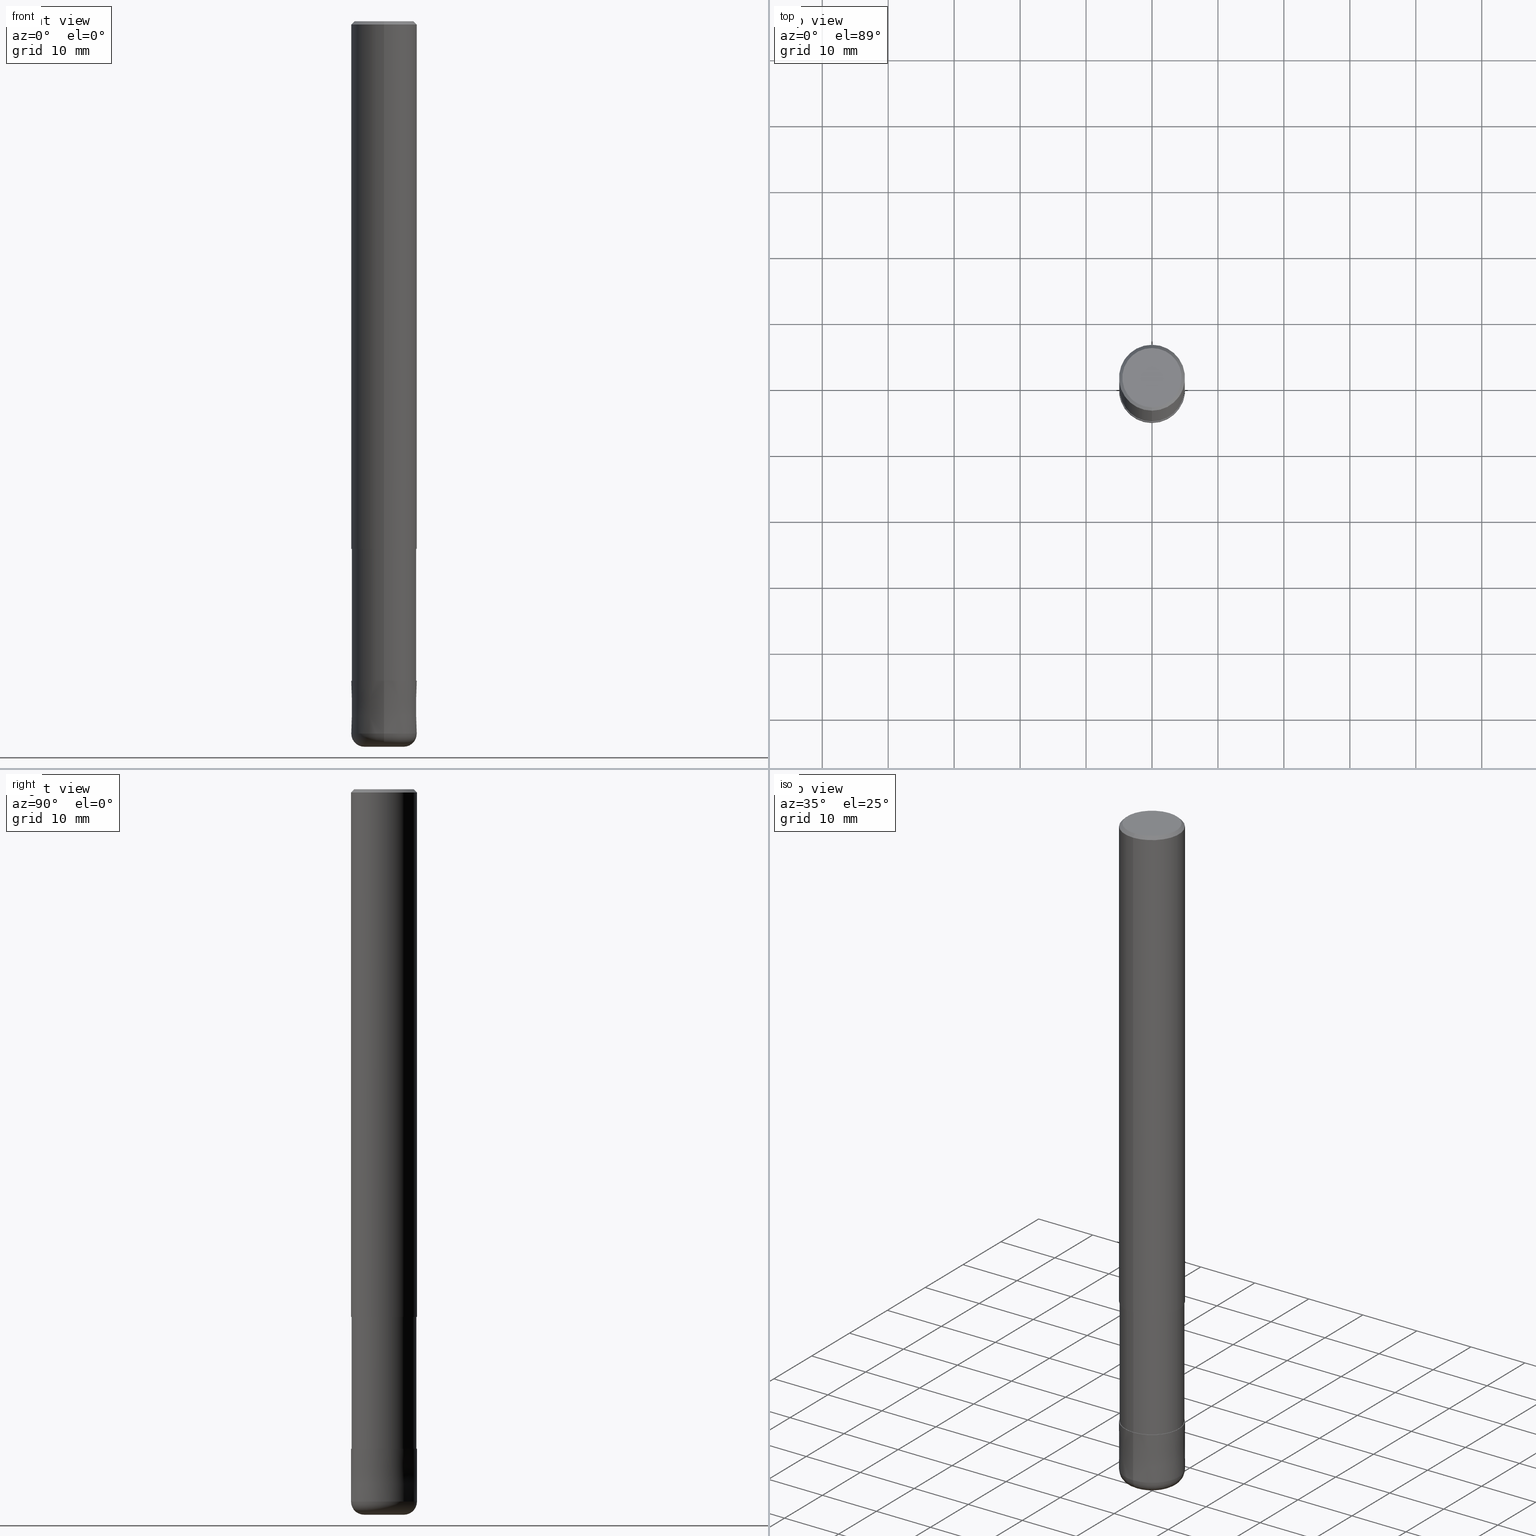
[diagram: canonical four-view strip — front | top / right | iso, engineering-drawing reading convention]
A machine part, canonical four-view strip (front | top / right | iso — engineering-drawing reading convention). The complete STEP part file that produces these views, byte-faithful:
ISO-10303-21;
HEADER;
FILE_DESCRIPTION(('no description'),'unknown implementation level');
FILE_NAME('CRRS4100-20-30-Huellk.stp','  ',('CIMSOURCE GmbH'),('CADClick - KiM GmbH - www.kimweb.de'),'unknown preprocess','ACIS','unknown authorization');
FILE_SCHEMA(('automotive_design'));
ENDSEC;
DATA;
#1=MECHANICAL_DESIGN_GEOMETRIC_PRESENTATION_REPRESENTATION(' ',(#14,#15,#16,#17,#18,#19,#20,#21,#22,#23,#24,#25,#26,#27,#28,#29,#30,#31,#32,#33,#34,#35,#36,#37,#38,#39,#40,#41,#42,#43,#44,#45,#46,#47,#48,#49,#50,#51,#52,#53,#54,#55,#56,#57,#58,#59,#60,#61,#62,#63,#64,#65,#66,#67,#68,#69,#70,#71,#72),#10);
#2=PRODUCT_DEFINITION_CONTEXT('',#73,'design');
#3=APPLICATION_PROTOCOL_DEFINITION('INTERNATIONAL STANDARD','automotive_design',1994,#73);
#4=PRODUCT_CATEGORY_RELATIONSHIP('NONE','NONE',#74,#75);
#5=SHAPE_DEFINITION_REPRESENTATION(#76,#77);
#6=PRODUCT_DEFINITION_CONTEXT('',#78,'design');
#7=APPLICATION_PROTOCOL_DEFINITION('INTERNATIONAL STANDARD','automotive_design',1994,#78);
#8=PRODUCT_CATEGORY_RELATIONSHIP('NONE','NONE',#79,#80);
#9=SHAPE_DEFINITION_REPRESENTATION(#81,#82);
#10= (GEOMETRIC_REPRESENTATION_CONTEXT(3)GLOBAL_UNCERTAINTY_ASSIGNED_CONTEXT((#85))GLOBAL_UNIT_ASSIGNED_CONTEXT((#87,#88,#89))REPRESENTATION_CONTEXT('NONE','WORKSPACE'));
#14=STYLED_ITEM('',(#91),#92);
#15=STYLED_ITEM('',(#93),#94);
#16=STYLED_ITEM('',(#95),#96);
#17=STYLED_ITEM('',(#97),#98);
#18=STYLED_ITEM('',(#99),#100);
#19=STYLED_ITEM('',(#101),#102);
#20=STYLED_ITEM('',(#103),#104);
#21=STYLED_ITEM('',(#105),#106);
#22=STYLED_ITEM('',(#107),#108);
#23=STYLED_ITEM('',(#109),#110);
#24=STYLED_ITEM('',(#111),#112);
#25=STYLED_ITEM('',(#113),#114);
#26=STYLED_ITEM('',(#115),#116);
#27=STYLED_ITEM('',(#117),#118);
#28=STYLED_ITEM('',(#119),#120);
#29=STYLED_ITEM('',(#121),#122);
#30=STYLED_ITEM('',(#123),#124);
#31=STYLED_ITEM('',(#125),#126);
#32=STYLED_ITEM('',(#127),#128);
#33=STYLED_ITEM('',(#129),#130);
#34=STYLED_ITEM('',(#131),#132);
#35=STYLED_ITEM('',(#133),#134);
#36=STYLED_ITEM('',(#135),#136);
#37=STYLED_ITEM('',(#137),#138);
#38=STYLED_ITEM('',(#139),#140);
#39=STYLED_ITEM('',(#141),#142);
#40=STYLED_ITEM('',(#143),#144);
#41=STYLED_ITEM('',(#145),#146);
#42=STYLED_ITEM('',(#147),#148);
#43=STYLED_ITEM('',(#149),#150);
#44=STYLED_ITEM('',(#151),#152);
#45=STYLED_ITEM('',(#153),#154);
#46=STYLED_ITEM('',(#155),#156);
#47=STYLED_ITEM('',(#157),#158);
#48=STYLED_ITEM('',(#159),#160);
#49=STYLED_ITEM('',(#161),#162);
#50=STYLED_ITEM('',(#163),#164);
#51=STYLED_ITEM('',(#165),#166);
#52=STYLED_ITEM('',(#167),#168);
#53=STYLED_ITEM('',(#169),#170);
#54=STYLED_ITEM('',(#171),#172);
#55=STYLED_ITEM('',(#173),#174);
#56=STYLED_ITEM('',(#175),#176);
#57=STYLED_ITEM('',(#177),#178);
#58=STYLED_ITEM('',(#179),#180);
#59=STYLED_ITEM('',(#181),#182);
#60=STYLED_ITEM('',(#183),#184);
#61=STYLED_ITEM('',(#185),#186);
#62=STYLED_ITEM('',(#187),#188);
#63=STYLED_ITEM('',(#189),#190);
#64=STYLED_ITEM('',(#191),#192);
#65=STYLED_ITEM('',(#193),#194);
#66=STYLED_ITEM('',(#195),#196);
#67=STYLED_ITEM('',(#197),#198);
#68=STYLED_ITEM('',(#199),#200);
#69=STYLED_ITEM('',(#201),#202);
#70=STYLED_ITEM('',(#203),#204);
#71=STYLED_ITEM('',(#205),#206);
#72=STYLED_ITEM('',(#207),#208);
#73=APPLICATION_CONTEXT(' ');
#74=PRODUCT_CATEGORY('part','NONE');
#75=PRODUCT_RELATED_PRODUCT_CATEGORY('detail',' ',(#209));
#76=PRODUCT_DEFINITION_SHAPE('NONE','NONE',#210);
#77=ADVANCED_BREP_SHAPE_REPRESENTATION('1',(#136,#211),#10);
#78=APPLICATION_CONTEXT(' ');
#79=PRODUCT_CATEGORY('part','NONE');
#80=PRODUCT_RELATED_PRODUCT_CATEGORY('detail',' ',(#212));
#81=PRODUCT_DEFINITION_SHAPE('NONE','NONE',#213);
#82=ADVANCED_BREP_SHAPE_REPRESENTATION('2',(#146,#214),#10);
#85=UNCERTAINTY_MEASURE_WITH_UNIT(LENGTH_MEASURE(1.0E-006),#87,'','');
#87= (CONVERSION_BASED_UNIT('MILLIMETRE',#217)LENGTH_UNIT()NAMED_UNIT(#220));
#88= (NAMED_UNIT(#222)PLANE_ANGLE_UNIT()SI_UNIT($,.RADIAN.));
#89= (NAMED_UNIT(#222)SOLID_ANGLE_UNIT()SI_UNIT($,.STERADIAN.));
#91=PRESENTATION_STYLE_ASSIGNMENT((#228));
#92=VERTEX_POINT('',#229);
#93=PRESENTATION_STYLE_ASSIGNMENT((#230));
#94=EDGE_CURVE('',#186,#122,#231,.T.);
#95=PRESENTATION_STYLE_ASSIGNMENT((#232));
#96=EDGE_CURVE('',#138,#182,#233,.T.);
#97=PRESENTATION_STYLE_ASSIGNMENT((#234));
#98=ADVANCED_FACE('',(#235),#236,.T.);
#99=PRESENTATION_STYLE_ASSIGNMENT((#237));
#100=VERTEX_POINT('',#238);
#101=PRESENTATION_STYLE_ASSIGNMENT((#239));
#102=VERTEX_POINT('',#240);
#103=PRESENTATION_STYLE_ASSIGNMENT((#241));
#104=VERTEX_POINT('',#242);
#105=PRESENTATION_STYLE_ASSIGNMENT((#243));
#106=EDGE_CURVE('',#196,#112,#244,.T.);
#107=PRESENTATION_STYLE_ASSIGNMENT((#245));
#108=ADVANCED_FACE('',(#246),#247,.T.);
#109=PRESENTATION_STYLE_ASSIGNMENT((#248));
#110=ADVANCED_FACE('',(#249),#250,.T.);
#111=PRESENTATION_STYLE_ASSIGNMENT((#251));
#112=VERTEX_POINT('',#252);
#113=PRESENTATION_STYLE_ASSIGNMENT((#253));
#114=EDGE_CURVE('',#164,#138,#254,.T.);
#115=PRESENTATION_STYLE_ASSIGNMENT((#255));
#116=EDGE_CURVE('',#154,#102,#256,.T.);
#117=PRESENTATION_STYLE_ASSIGNMENT((#257));
#118=ADVANCED_FACE('',(#258),#259,.T.);
#119=PRESENTATION_STYLE_ASSIGNMENT((#260));
#120=VERTEX_POINT('',#261);
#121=PRESENTATION_STYLE_ASSIGNMENT((#262));
#122=VERTEX_POINT('',#263);
#123=PRESENTATION_STYLE_ASSIGNMENT((#264));
#124=VERTEX_POINT('',#265);
#125=PRESENTATION_STYLE_ASSIGNMENT((#266));
#126=EDGE_CURVE('',#112,#196,#267,.T.);
#127=PRESENTATION_STYLE_ASSIGNMENT((#268));
#128=ADVANCED_FACE('',(#269,#270),#271,.T.);
#129=PRESENTATION_STYLE_ASSIGNMENT((#272));
#130=EDGE_CURVE('',#92,#120,#273,.T.);
#131=PRESENTATION_STYLE_ASSIGNMENT((#274));
#132=EDGE_CURVE('',#102,#154,#275,.T.);
#133=PRESENTATION_STYLE_ASSIGNMENT((#276));
#134=EDGE_CURVE('',#182,#138,#277,.T.);
#135=PRESENTATION_STYLE_ASSIGNMENT((#278));
#136=MANIFOLD_SOLID_BREP('1',#279);
#137=PRESENTATION_STYLE_ASSIGNMENT((#280));
#138=VERTEX_POINT('',#281);
#139=PRESENTATION_STYLE_ASSIGNMENT((#282));
#140=ADVANCED_FACE('',(#283),#284,.T.);
#141=PRESENTATION_STYLE_ASSIGNMENT((#285));
#142=EDGE_CURVE('',#100,#104,#286,.T.);
#143=PRESENTATION_STYLE_ASSIGNMENT((#287));
#144=EDGE_CURVE('',#104,#100,#288,.T.);
#145=PRESENTATION_STYLE_ASSIGNMENT((#289));
#146=MANIFOLD_SOLID_BREP('2',#290);
#147=PRESENTATION_STYLE_ASSIGNMENT((#291));
#148=EDGE_CURVE('',#120,#92,#292,.T.);
#149=PRESENTATION_STYLE_ASSIGNMENT((#293));
#150=EDGE_CURVE('',#122,#120,#294,.T.);
#151=PRESENTATION_STYLE_ASSIGNMENT((#295));
#152=ADVANCED_FACE('',(#296),#297,.T.);
#153=PRESENTATION_STYLE_ASSIGNMENT((#298));
#154=VERTEX_POINT('',#299);
#155=PRESENTATION_STYLE_ASSIGNMENT((#300));
#156=ADVANCED_FACE('',(#301),#302,.T.);
#157=PRESENTATION_STYLE_ASSIGNMENT((#303));
#158=ADVANCED_FACE('',(#304),#305,.T.);
#159=PRESENTATION_STYLE_ASSIGNMENT((#306));
#160=EDGE_CURVE('',#194,#164,#307,.T.);
#161=PRESENTATION_STYLE_ASSIGNMENT((#308));
#162=ADVANCED_FACE('',(#309),#310,.T.);
#163=PRESENTATION_STYLE_ASSIGNMENT((#311));
#164=VERTEX_POINT('',#312);
#165=PRESENTATION_STYLE_ASSIGNMENT((#313));
#166=EDGE_CURVE('',#104,#184,#314,.T.);
#167=PRESENTATION_STYLE_ASSIGNMENT((#315));
#168=EDGE_CURVE('',#124,#184,#316,.T.);
#169=PRESENTATION_STYLE_ASSIGNMENT((#317));
#170=EDGE_CURVE('',#92,#186,#318,.T.);
#171=PRESENTATION_STYLE_ASSIGNMENT((#319));
#172=EDGE_CURVE('',#164,#154,#320,.T.);
#173=PRESENTATION_STYLE_ASSIGNMENT((#321));
#174=EDGE_CURVE('',#120,#196,#322,.T.);
#175=PRESENTATION_STYLE_ASSIGNMENT((#323));
#176=ADVANCED_FACE('',(#324),#325,.T.);
#177=PRESENTATION_STYLE_ASSIGNMENT((#326));
#178=EDGE_CURVE('',#102,#194,#327,.T.);
#179=PRESENTATION_STYLE_ASSIGNMENT((#328));
#180=ADVANCED_FACE('',(#329),#330,.T.);
#181=PRESENTATION_STYLE_ASSIGNMENT((#331));
#182=VERTEX_POINT('',#332);
#183=PRESENTATION_STYLE_ASSIGNMENT((#333));
#184=VERTEX_POINT('',#334);
#185=PRESENTATION_STYLE_ASSIGNMENT((#335));
#186=VERTEX_POINT('',#336);
#187=PRESENTATION_STYLE_ASSIGNMENT((#337));
#188=ADVANCED_FACE('',(#338),#339,.T.);
#189=PRESENTATION_STYLE_ASSIGNMENT((#340));
#190=ADVANCED_FACE('',(#341),#342,.T.);
#191=PRESENTATION_STYLE_ASSIGNMENT((#343));
#192=ADVANCED_FACE('',(#344),#345,.T.);
#193=PRESENTATION_STYLE_ASSIGNMENT((#346));
#194=VERTEX_POINT('',#347);
#195=PRESENTATION_STYLE_ASSIGNMENT((#348));
#196=VERTEX_POINT('',#349);
#197=PRESENTATION_STYLE_ASSIGNMENT((#350));
#198=EDGE_CURVE('',#122,#186,#351,.T.);
#199=PRESENTATION_STYLE_ASSIGNMENT((#352));
#200=EDGE_CURVE('',#164,#194,#353,.T.);
#201=PRESENTATION_STYLE_ASSIGNMENT((#354));
#202=EDGE_CURVE('',#112,#92,#355,.T.);
#203=PRESENTATION_STYLE_ASSIGNMENT((#356));
#204=EDGE_CURVE('',#182,#194,#357,.T.);
#205=PRESENTATION_STYLE_ASSIGNMENT((#358));
#206=EDGE_CURVE('',#184,#124,#359,.T.);
#207=PRESENTATION_STYLE_ASSIGNMENT((#360));
#208=EDGE_CURVE('',#124,#100,#361,.T.);
#209=PRODUCT('1','1','PART-1-DESC',(#362));
#210=PRODUCT_DEFINITION('NONE','NONE',#363,#2);
#211=AXIS2_PLACEMENT_3D('',#364,#365,#366);
#212=PRODUCT('2','2','PART-2-DESC',(#367));
#213=PRODUCT_DEFINITION('NONE','NONE',#368,#6);
#214=AXIS2_PLACEMENT_3D('',#369,#370,#371);
#217=LENGTH_MEASURE_WITH_UNIT(LENGTH_MEASURE(1.0),#372);
#220=DIMENSIONAL_EXPONENTS(1.0,0.0,0.0,0.0,0.0,0.0,0.0);
#222=DIMENSIONAL_EXPONENTS(0.0,0.0,0.0,0.0,0.0,0.0,0.0);
#228=POINT_STYLE(' ',#373,POSITIVE_LENGTH_MEASURE(1.0E-006),#374);
#229=CARTESIAN_POINT('',(6.12303176911189E-016,-5.0,-0.5));
#230=CURVE_STYLE('',#375,POSITIVE_LENGTH_MEASURE(1.0E-006),#376);
#231=CIRCLE('',#377,4.5);
#232=CURVE_STYLE('',#378,POSITIVE_LENGTH_MEASURE(1.0E-006),#379);
#233=CIRCLE('',#380,4.9999);
#234=SURFACE_STYLE_USAGE(.BOTH.,#381);
#235=FACE_OUTER_BOUND('',#382,.T.);
#236=CONICAL_SURFACE('',#383,4.75,0.785398163397448);
#237=POINT_STYLE(' ',#384,POSITIVE_LENGTH_MEASURE(1.0E-006),#385);
#238=CARTESIAN_POINT('',(6.01275596695018E-016,-4.90995,-80.0));
#239=POINT_STYLE(' ',#386,POSITIVE_LENGTH_MEASURE(1.0E-006),#387);
#240=CARTESIAN_POINT('',(0.0,3.0,-110.0));
#241=POINT_STYLE(' ',#388,POSITIVE_LENGTH_MEASURE(1.0E-006),#389);
#242=CARTESIAN_POINT('',(0.0,4.90995,-80.0));
#243=CURVE_STYLE('',#390,POSITIVE_LENGTH_MEASURE(1.0E-006),#391);
#244=CIRCLE('',#392,5.0);
#245=SURFACE_STYLE_USAGE(.BOTH.,#393);
#246=FACE_OUTER_BOUND('',#394,.T.);
#247=TOROIDAL_SURFACE('',#395,3.0,2.0);
#248=SURFACE_STYLE_USAGE(.BOTH.,#396);
#249=FACE_OUTER_BOUND('',#397,.T.);
#250=PLANE('',#398);
#251=POINT_STYLE(' ',#399,POSITIVE_LENGTH_MEASURE(1.0E-006),#400);
#252=CARTESIAN_POINT('',(6.12303176911189E-016,-5.0,-80.0));
#253=CURVE_STYLE('',#401,POSITIVE_LENGTH_MEASURE(1.0E-006),#402);
#254=LINE('',#403,#404);
#255=CURVE_STYLE('',#405,POSITIVE_LENGTH_MEASURE(1.0E-006),#406);
#256=CIRCLE('',#407,3.0);
#257=SURFACE_STYLE_USAGE(.BOTH.,#408);
#258=FACE_OUTER_BOUND('',#409,.T.);
#259=PLANE('',#410);
#260=POINT_STYLE(' ',#411,POSITIVE_LENGTH_MEASURE(1.0E-006),#412);
#261=CARTESIAN_POINT('',(0.0,5.0,-0.5));
#262=POINT_STYLE(' ',#413,POSITIVE_LENGTH_MEASURE(1.0E-006),#414);
#263=CARTESIAN_POINT('',(0.0,4.5,0.0));
#264=POINT_STYLE(' ',#415,POSITIVE_LENGTH_MEASURE(1.0E-006),#416);
#265=CARTESIAN_POINT('',(6.01275596695018E-016,-4.90995,-100.0));
#266=CURVE_STYLE('',#417,POSITIVE_LENGTH_MEASURE(1.0E-006),#418);
#267=CIRCLE('',#419,5.0);
#268=SURFACE_STYLE_USAGE(.BOTH.,#420);
#269=FACE_OUTER_BOUND('',#421,.T.);
#270=FACE_BOUND('',#422,.T.);
#271=PLANE('',#423);
#272=CURVE_STYLE('',#424,POSITIVE_LENGTH_MEASURE(1.0E-006),#425);
#273=CIRCLE('',#426,5.0);
#274=CURVE_STYLE('',#427,POSITIVE_LENGTH_MEASURE(1.0E-006),#428);
#275=CIRCLE('',#429,3.0);
#276=CURVE_STYLE('',#430,POSITIVE_LENGTH_MEASURE(1.0E-006),#431);
#277=CIRCLE('',#432,4.9999);
#278=SURFACE_STYLE_USAGE(.BOTH.,#433);
#279=CLOSED_SHELL('',(#176,#156,#140,#128,#118,#98,#188,#162,#180));
#280=POINT_STYLE(' ',#434,POSITIVE_LENGTH_MEASURE(1.0E-006),#435);
#281=CARTESIAN_POINT('',(6.1229093084765E-016,-4.9999,-100.0));
#282=SURFACE_STYLE_USAGE(.BOTH.,#436);
#283=FACE_OUTER_BOUND('',#437,.T.);
#284=CONICAL_SURFACE('',#438,4.75,0.785398163397448);
#285=CURVE_STYLE('',#439,POSITIVE_LENGTH_MEASURE(1.0E-006),#440);
#286=CIRCLE('',#441,4.90995);
#287=CURVE_STYLE('',#442,POSITIVE_LENGTH_MEASURE(1.0E-006),#443);
#288=CIRCLE('',#444,4.90995);
#289=SURFACE_STYLE_USAGE(.BOTH.,#445);
#290=CLOSED_SHELL('',(#108,#192,#110,#158,#152,#190));
#291=CURVE_STYLE('',#446,POSITIVE_LENGTH_MEASURE(1.0E-006),#447);
#292=CIRCLE('',#448,5.0);
#293=CURVE_STYLE('',#449,POSITIVE_LENGTH_MEASURE(1.0E-006),#450);
#294=LINE('',#451,#452);
#295=SURFACE_STYLE_USAGE(.BOTH.,#453);
#296=FACE_OUTER_BOUND('',#454,.T.);
#297=TOROIDAL_SURFACE('',#455,3.0,2.0);
#298=POINT_STYLE(' ',#456,POSITIVE_LENGTH_MEASURE(1.0E-006),#457);
#299=CARTESIAN_POINT('',(3.67381906146713E-016,-3.0,-110.0));
#300=SURFACE_STYLE_USAGE(.BOTH.,#458);
#301=FACE_OUTER_BOUND('',#459,.T.);
#302=CYLINDRICAL_SURFACE('',#460,5.0);
#303=SURFACE_STYLE_USAGE(.BOTH.,#461);
#304=FACE_OUTER_BOUND('',#462,.T.);
#305=CONICAL_SURFACE('',#463,4.99995,1.24999999993198E-005);
#306=CURVE_STYLE('',#464,POSITIVE_LENGTH_MEASURE(1.0E-006),#465);
#307=CIRCLE('',#466,5.0);
#308=SURFACE_STYLE_USAGE(.BOTH.,#467);
#309=FACE_OUTER_BOUND('',#468,.T.);
#310=CYLINDRICAL_SURFACE('',#469,4.90995);
#311=POINT_STYLE(' ',#470,POSITIVE_LENGTH_MEASURE(1.0E-006),#471);
#312=CARTESIAN_POINT('',(6.12303176911189E-016,-5.0,-108.0));
#313=CURVE_STYLE('',#472,POSITIVE_LENGTH_MEASURE(1.0E-006),#473);
#314=LINE('',#474,#475);
#315=CURVE_STYLE('',#476,POSITIVE_LENGTH_MEASURE(1.0E-006),#477);
#316=CIRCLE('',#478,4.90995);
#317=CURVE_STYLE('',#479,POSITIVE_LENGTH_MEASURE(1.0E-006),#480);
#318=LINE('',#481,#482);
#319=CURVE_STYLE('',#483,POSITIVE_LENGTH_MEASURE(1.0E-006),#484);
#320=CIRCLE('',#485,2.0);
#321=CURVE_STYLE('',#486,POSITIVE_LENGTH_MEASURE(1.0E-006),#487);
#322=LINE('',#488,#489);
#323=SURFACE_STYLE_USAGE(.BOTH.,#490);
#324=FACE_OUTER_BOUND('',#491,.T.);
#325=CYLINDRICAL_SURFACE('',#492,4.90995);
#326=CURVE_STYLE('',#493,POSITIVE_LENGTH_MEASURE(1.0E-006),#494);
#327=CIRCLE('',#495,2.0);
#328=SURFACE_STYLE_USAGE(.BOTH.,#496);
#329=FACE_OUTER_BOUND('',#497,.T.);
#330=PLANE('',#498);
#331=POINT_STYLE(' ',#499,POSITIVE_LENGTH_MEASURE(1.0E-006),#500);
#332=CARTESIAN_POINT('',(0.0,4.9999,-100.0));
#333=POINT_STYLE(' ',#501,POSITIVE_LENGTH_MEASURE(1.0E-006),#502);
#334=CARTESIAN_POINT('',(0.0,4.90995,-100.0));
#335=POINT_STYLE(' ',#503,POSITIVE_LENGTH_MEASURE(1.0E-006),#504);
#336=CARTESIAN_POINT('',(5.5107285922007E-016,-4.5,0.0));
#337=SURFACE_STYLE_USAGE(.BOTH.,#505);
#338=FACE_OUTER_BOUND('',#506,.T.);
#339=CYLINDRICAL_SURFACE('',#507,5.0);
#340=SURFACE_STYLE_USAGE(.BOTH.,#508);
#341=FACE_OUTER_BOUND('',#509,.T.);
#342=PLANE('',#510);
#343=SURFACE_STYLE_USAGE(.BOTH.,#511);
#344=FACE_OUTER_BOUND('',#512,.T.);
#345=CONICAL_SURFACE('',#513,4.99995,1.24999999993198E-005);
#346=POINT_STYLE(' ',#514,POSITIVE_LENGTH_MEASURE(1.0E-006),#515);
#347=CARTESIAN_POINT('',(0.0,5.0,-108.0));
#348=POINT_STYLE(' ',#516,POSITIVE_LENGTH_MEASURE(1.0E-006),#517);
#349=CARTESIAN_POINT('',(0.0,5.0,-80.0));
#350=CURVE_STYLE('',#518,POSITIVE_LENGTH_MEASURE(1.0E-006),#519);
#351=CIRCLE('',#520,4.5);
#352=CURVE_STYLE('',#521,POSITIVE_LENGTH_MEASURE(1.0E-006),#522);
#353=CIRCLE('',#523,5.0);
#354=CURVE_STYLE('',#524,POSITIVE_LENGTH_MEASURE(1.0E-006),#525);
#355=LINE('',#526,#527);
#356=CURVE_STYLE('',#528,POSITIVE_LENGTH_MEASURE(1.0E-006),#529);
#357=LINE('',#530,#531);
#358=CURVE_STYLE('',#532,POSITIVE_LENGTH_MEASURE(1.0E-006),#533);
#359=CIRCLE('',#534,4.90995);
#360=CURVE_STYLE('',#535,POSITIVE_LENGTH_MEASURE(1.0E-006),#536);
#361=LINE('',#537,#538);
#362=PRODUCT_CONTEXT('',#73,'mechanical');
#363=PRODUCT_DEFINITION_FORMATION_WITH_SPECIFIED_SOURCE(' ','NONE',#209,.NOT_KNOWN.);
#364=CARTESIAN_POINT('',(0.0,0.0,0.0));
#365=DIRECTION('',(0.0,0.0,1.0));
#366=DIRECTION('',(1.0,0.0,0.0));
#367=PRODUCT_CONTEXT('',#78,'mechanical');
#368=PRODUCT_DEFINITION_FORMATION_WITH_SPECIFIED_SOURCE(' ','NONE',#212,.NOT_KNOWN.);
#369=CARTESIAN_POINT('',(0.0,0.0,0.0));
#370=DIRECTION('',(0.0,0.0,1.0));
#371=DIRECTION('',(1.0,0.0,0.0));
#372= (NAMED_UNIT(#220)LENGTH_UNIT()SI_UNIT(.MILLI.,.METRE.));
#373=PRE_DEFINED_MARKER('');
#374=COLOUR_RGB('',0.498039215803146,0.498039215803146,0.498039215803146);
#375=DRAUGHTING_PRE_DEFINED_CURVE_FONT('continuous');
#376=COLOUR_RGB('',0.498039215803146,0.498039215803146,0.498039215803146);
#377=AXIS2_PLACEMENT_3D('',#540,#541,#542);
#378=DRAUGHTING_PRE_DEFINED_CURVE_FONT('continuous');
#379=COLOUR_RGB('',0.800000011920929,0.800000011920929,0.800000011920929);
#380=AXIS2_PLACEMENT_3D('',#543,#544,#545);
#381=SURFACE_SIDE_STYLE('',(#546));
#382=EDGE_LOOP('',(#547,#548,#549,#550));
#383=AXIS2_PLACEMENT_3D('',#551,#552,#553);
#384=PRE_DEFINED_MARKER('');
#385=COLOUR_RGB('',0.498039215803146,0.498039215803146,0.498039215803146);
#386=PRE_DEFINED_MARKER('');
#387=COLOUR_RGB('',0.800000011920929,0.800000011920929,0.800000011920929);
#388=PRE_DEFINED_MARKER('');
#389=COLOUR_RGB('',0.498039215803146,0.498039215803146,0.498039215803146);
#390=DRAUGHTING_PRE_DEFINED_CURVE_FONT('continuous');
#391=COLOUR_RGB('',0.498039215803146,0.498039215803146,0.498039215803146);
#392=AXIS2_PLACEMENT_3D('',#554,#555,#556);
#393=SURFACE_SIDE_STYLE('',(#557));
#394=EDGE_LOOP('',(#558,#559,#560,#561));
#395=AXIS2_PLACEMENT_3D('',#562,#563,#564);
#396=SURFACE_SIDE_STYLE('',(#565));
#397=EDGE_LOOP('',(#566,#567));
#398=AXIS2_PLACEMENT_3D('',#568,#569,#570);
#399=PRE_DEFINED_MARKER('');
#400=COLOUR_RGB('',0.498039215803146,0.498039215803146,0.498039215803146);
#401=DRAUGHTING_PRE_DEFINED_CURVE_FONT('continuous');
#402=COLOUR_RGB('',0.800000011920929,0.800000011920929,0.800000011920929);
#403=CARTESIAN_POINT('',(6.1229705387942E-016,-4.99995,-104.0));
#404=VECTOR('',#571,1.0);
#405=DRAUGHTING_PRE_DEFINED_CURVE_FONT('continuous');
#406=COLOUR_RGB('',0.800000011920929,0.800000011920929,0.800000011920929);
#407=AXIS2_PLACEMENT_3D('',#572,#573,#574);
#408=SURFACE_SIDE_STYLE('',(#575));
#409=EDGE_LOOP('',(#576,#577));
#410=AXIS2_PLACEMENT_3D('',#578,#579,#580);
#411=PRE_DEFINED_MARKER('');
#412=COLOUR_RGB('',0.498039215803146,0.498039215803146,0.498039215803146);
#413=PRE_DEFINED_MARKER('');
#414=COLOUR_RGB('',0.498039215803146,0.498039215803146,0.498039215803146);
#415=PRE_DEFINED_MARKER('');
#416=COLOUR_RGB('',0.498039215803146,0.498039215803146,0.498039215803146);
#417=DRAUGHTING_PRE_DEFINED_CURVE_FONT('continuous');
#418=COLOUR_RGB('',0.498039215803146,0.498039215803146,0.498039215803146);
#419=AXIS2_PLACEMENT_3D('',#581,#582,#583);
#420=SURFACE_SIDE_STYLE('',(#584));
#421=EDGE_LOOP('',(#585,#586));
#422=EDGE_LOOP('',(#587,#588));
#423=AXIS2_PLACEMENT_3D('',#589,#590,#591);
#424=DRAUGHTING_PRE_DEFINED_CURVE_FONT('continuous');
#425=COLOUR_RGB('',0.498039215803146,0.498039215803146,0.498039215803146);
#426=AXIS2_PLACEMENT_3D('',#592,#593,#594);
#427=DRAUGHTING_PRE_DEFINED_CURVE_FONT('continuous');
#428=COLOUR_RGB('',0.800000011920929,0.800000011920929,0.800000011920929);
#429=AXIS2_PLACEMENT_3D('',#595,#596,#597);
#430=DRAUGHTING_PRE_DEFINED_CURVE_FONT('continuous');
#431=COLOUR_RGB('',0.800000011920929,0.800000011920929,0.800000011920929);
#432=AXIS2_PLACEMENT_3D('',#598,#599,#600);
#433=SURFACE_SIDE_STYLE('',(#601));
#434=PRE_DEFINED_MARKER('');
#435=COLOUR_RGB('',0.800000011920929,0.800000011920929,0.800000011920929);
#436=SURFACE_SIDE_STYLE('',(#602));
#437=EDGE_LOOP('',(#603,#604,#605,#606));
#438=AXIS2_PLACEMENT_3D('',#607,#608,#609);
#439=DRAUGHTING_PRE_DEFINED_CURVE_FONT('continuous');
#440=COLOUR_RGB('',0.498039215803146,0.498039215803146,0.498039215803146);
#441=AXIS2_PLACEMENT_3D('',#610,#611,#612);
#442=DRAUGHTING_PRE_DEFINED_CURVE_FONT('continuous');
#443=COLOUR_RGB('',0.498039215803146,0.498039215803146,0.498039215803146);
#444=AXIS2_PLACEMENT_3D('',#613,#614,#615);
#445=SURFACE_SIDE_STYLE('',(#616));
#446=DRAUGHTING_PRE_DEFINED_CURVE_FONT('continuous');
#447=COLOUR_RGB('',0.498039215803146,0.498039215803146,0.498039215803146);
#448=AXIS2_PLACEMENT_3D('',#617,#618,#619);
#449=DRAUGHTING_PRE_DEFINED_CURVE_FONT('continuous');
#450=COLOUR_RGB('',0.498039215803146,0.498039215803146,0.498039215803146);
#451=CARTESIAN_POINT('',(-5.81688018065629E-016,4.75,-0.25));
#452=VECTOR('',#620,1.0);
#453=SURFACE_SIDE_STYLE('',(#621));
#454=EDGE_LOOP('',(#622,#623,#624,#625));
#455=AXIS2_PLACEMENT_3D('',#626,#627,#628);
#456=PRE_DEFINED_MARKER('');
#457=COLOUR_RGB('',0.800000011920929,0.800000011920929,0.800000011920929);
#458=SURFACE_SIDE_STYLE('',(#629));
#459=EDGE_LOOP('',(#630,#631,#632,#633));
#460=AXIS2_PLACEMENT_3D('',#634,#635,#636);
#461=SURFACE_SIDE_STYLE('',(#637));
#462=EDGE_LOOP('',(#638,#639,#640,#641));
#463=AXIS2_PLACEMENT_3D('',#642,#643,#644);
#464=DRAUGHTING_PRE_DEFINED_CURVE_FONT('continuous');
#465=COLOUR_RGB('',0.800000011920929,0.800000011920929,0.800000011920929);
#466=AXIS2_PLACEMENT_3D('',#645,#646,#647);
#467=SURFACE_SIDE_STYLE('',(#648));
#468=EDGE_LOOP('',(#649,#650,#651,#652));
#469=AXIS2_PLACEMENT_3D('',#653,#654,#655);
#470=PRE_DEFINED_MARKER('');
#471=COLOUR_RGB('',0.800000011920929,0.800000011920929,0.800000011920929);
#472=DRAUGHTING_PRE_DEFINED_CURVE_FONT('continuous');
#473=COLOUR_RGB('',0.498039215803146,0.498039215803146,0.498039215803146);
#474=CARTESIAN_POINT('',(-6.01275596695018E-016,4.90995,-90.0));
#475=VECTOR('',#656,1.0);
#476=DRAUGHTING_PRE_DEFINED_CURVE_FONT('continuous');
#477=COLOUR_RGB('',0.498039215803146,0.498039215803146,0.498039215803146);
#478=AXIS2_PLACEMENT_3D('',#657,#658,#659);
#479=DRAUGHTING_PRE_DEFINED_CURVE_FONT('continuous');
#480=COLOUR_RGB('',0.498039215803146,0.498039215803146,0.498039215803146);
#481=CARTESIAN_POINT('',(5.81688018065629E-016,-4.75,-0.25));
#482=VECTOR('',#660,1.0);
#483=DRAUGHTING_PRE_DEFINED_CURVE_FONT('continuous');
#484=COLOUR_RGB('',0.800000011920929,0.800000011920929,0.800000011920929);
#485=AXIS2_PLACEMENT_3D('',#661,#662,#663);
#486=DRAUGHTING_PRE_DEFINED_CURVE_FONT('continuous');
#487=COLOUR_RGB('',0.498039215803146,0.498039215803146,0.498039215803146);
#488=CARTESIAN_POINT('',(-6.12303176911189E-016,5.0,-40.25));
#489=VECTOR('',#664,1.0);
#490=SURFACE_SIDE_STYLE('',(#665));
#491=EDGE_LOOP('',(#666,#667,#668,#669));
#492=AXIS2_PLACEMENT_3D('',#670,#671,#672);
#493=DRAUGHTING_PRE_DEFINED_CURVE_FONT('continuous');
#494=COLOUR_RGB('',0.800000011920929,0.800000011920929,0.800000011920929);
#495=AXIS2_PLACEMENT_3D('',#673,#674,#675);
#496=SURFACE_SIDE_STYLE('',(#676));
#497=EDGE_LOOP('',(#677,#678));
#498=AXIS2_PLACEMENT_3D('',#679,#680,#681);
#499=PRE_DEFINED_MARKER('');
#500=COLOUR_RGB('',0.800000011920929,0.800000011920929,0.800000011920929);
#501=PRE_DEFINED_MARKER('');
#502=COLOUR_RGB('',0.498039215803146,0.498039215803146,0.498039215803146);
#503=PRE_DEFINED_MARKER('');
#504=COLOUR_RGB('',0.498039215803146,0.498039215803146,0.498039215803146);
#505=SURFACE_SIDE_STYLE('',(#682));
#506=EDGE_LOOP('',(#683,#684,#685,#686));
#507=AXIS2_PLACEMENT_3D('',#687,#688,#689);
#508=SURFACE_SIDE_STYLE('',(#690));
#509=EDGE_LOOP('',(#691,#692));
#510=AXIS2_PLACEMENT_3D('',#693,#694,#695);
#511=SURFACE_SIDE_STYLE('',(#696));
#512=EDGE_LOOP('',(#697,#698,#699,#700));
#513=AXIS2_PLACEMENT_3D('',#701,#702,#703);
#514=PRE_DEFINED_MARKER('');
#515=COLOUR_RGB('',0.800000011920929,0.800000011920929,0.800000011920929);
#516=PRE_DEFINED_MARKER('');
#517=COLOUR_RGB('',0.498039215803146,0.498039215803146,0.498039215803146);
#518=DRAUGHTING_PRE_DEFINED_CURVE_FONT('continuous');
#519=COLOUR_RGB('',0.498039215803146,0.498039215803146,0.498039215803146);
#520=AXIS2_PLACEMENT_3D('',#704,#705,#706);
#521=DRAUGHTING_PRE_DEFINED_CURVE_FONT('continuous');
#522=COLOUR_RGB('',0.800000011920929,0.800000011920929,0.800000011920929);
#523=AXIS2_PLACEMENT_3D('',#707,#708,#709);
#524=DRAUGHTING_PRE_DEFINED_CURVE_FONT('continuous');
#525=COLOUR_RGB('',0.498039215803146,0.498039215803146,0.498039215803146);
#526=CARTESIAN_POINT('',(6.12303176911189E-016,-5.0,-40.25));
#527=VECTOR('',#710,1.0);
#528=DRAUGHTING_PRE_DEFINED_CURVE_FONT('continuous');
#529=COLOUR_RGB('',0.800000011920929,0.800000011920929,0.800000011920929);
#530=CARTESIAN_POINT('',(-6.1229705387942E-016,4.99995,-104.0));
#531=VECTOR('',#711,1.0);
#532=DRAUGHTING_PRE_DEFINED_CURVE_FONT('continuous');
#533=COLOUR_RGB('',0.498039215803146,0.498039215803146,0.498039215803146);
#534=AXIS2_PLACEMENT_3D('',#712,#713,#714);
#535=DRAUGHTING_PRE_DEFINED_CURVE_FONT('continuous');
#536=COLOUR_RGB('',0.498039215803146,0.498039215803146,0.498039215803146);
#537=CARTESIAN_POINT('',(6.01275596695018E-016,-4.90995,-90.0));
#538=VECTOR('',#715,1.0);
#540=CARTESIAN_POINT('',(0.0,0.0,0.0));
#541=DIRECTION('',(0.0,0.0,-1.0));
#542=DIRECTION('',(0.0,1.0,0.0));
#543=CARTESIAN_POINT('',(0.0,0.0,-100.0));
#544=DIRECTION('',(0.0,0.0,-1.0));
#545=DIRECTION('',(0.0,1.0,0.0));
#546=SURFACE_STYLE_FILL_AREA(#716);
#547=ORIENTED_EDGE('',*,*,#150,.T.);
#548=ORIENTED_EDGE('',*,*,#130,.F.);
#549=ORIENTED_EDGE('',*,*,#170,.T.);
#550=ORIENTED_EDGE('',*,*,#94,.T.);
#551=CARTESIAN_POINT('',(0.0,0.0,-0.25));
#552=DIRECTION('',(0.0,-0.0,-1.0));
#553=DIRECTION('',(0.0,1.0,0.0));
#554=CARTESIAN_POINT('',(0.0,0.0,-80.0));
#555=DIRECTION('',(0.0,0.0,-1.0));
#556=DIRECTION('',(0.0,1.0,0.0));
#557=SURFACE_STYLE_FILL_AREA(#717);
#558=ORIENTED_EDGE('',*,*,#172,.F.);
#559=ORIENTED_EDGE('',*,*,#200,.T.);
#560=ORIENTED_EDGE('',*,*,#178,.F.);
#561=ORIENTED_EDGE('',*,*,#116,.F.);
#562=CARTESIAN_POINT('',(0.0,0.0,-108.0));
#563=DIRECTION('',(0.0,0.0,-1.0));
#564=DIRECTION('',(0.0,-1.0,0.0));
#565=SURFACE_STYLE_FILL_AREA(#718);
#566=ORIENTED_EDGE('',*,*,#134,.F.);
#567=ORIENTED_EDGE('',*,*,#96,.F.);
#568=CARTESIAN_POINT('',(0.0,2.49995,-100.0));
#569=DIRECTION('',(-0.0,0.0,1.0));
#570=DIRECTION('',(0.0,-1.0,0.0));
#571=DIRECTION('',(-1.53075794215481E-021,1.24999999989943E-005,0.999999999921875));
#572=CARTESIAN_POINT('',(0.0,0.0,-110.0));
#573=DIRECTION('',(0.0,0.0,-1.0));
#574=DIRECTION('',(0.0,1.0,0.0));
#575=SURFACE_STYLE_FILL_AREA(#719);
#576=ORIENTED_EDGE('',*,*,#198,.F.);
#577=ORIENTED_EDGE('',*,*,#94,.F.);
#578=CARTESIAN_POINT('',(0.0,2.25,0.0));
#579=DIRECTION('',(-0.0,0.0,1.0));
#580=DIRECTION('',(0.0,-1.0,0.0));
#581=CARTESIAN_POINT('',(0.0,0.0,-80.0));
#582=DIRECTION('',(0.0,0.0,-1.0));
#583=DIRECTION('',(0.0,1.0,0.0));
#584=SURFACE_STYLE_FILL_AREA(#720);
#585=ORIENTED_EDGE('',*,*,#106,.T.);
#586=ORIENTED_EDGE('',*,*,#126,.T.);
#587=ORIENTED_EDGE('',*,*,#144,.F.);
#588=ORIENTED_EDGE('',*,*,#142,.F.);
#589=CARTESIAN_POINT('',(0.0,2.5,-80.0));
#590=DIRECTION('',(0.0,0.0,-1.0));
#591=DIRECTION('',(0.0,1.0,0.0));
#592=CARTESIAN_POINT('',(0.0,0.0,-0.5));
#593=DIRECTION('',(0.0,0.0,-1.0));
#594=DIRECTION('',(0.0,1.0,0.0));
#595=CARTESIAN_POINT('',(0.0,0.0,-110.0));
#596=DIRECTION('',(0.0,0.0,-1.0));
#597=DIRECTION('',(0.0,1.0,0.0));
#598=CARTESIAN_POINT('',(0.0,0.0,-100.0));
#599=DIRECTION('',(0.0,0.0,-1.0));
#600=DIRECTION('',(0.0,1.0,0.0));
#601=SURFACE_STYLE_FILL_AREA(#721);
#602=SURFACE_STYLE_FILL_AREA(#722);
#603=ORIENTED_EDGE('',*,*,#150,.F.);
#604=ORIENTED_EDGE('',*,*,#198,.T.);
#605=ORIENTED_EDGE('',*,*,#170,.F.);
#606=ORIENTED_EDGE('',*,*,#148,.F.);
#607=CARTESIAN_POINT('',(0.0,0.0,-0.25));
#608=DIRECTION('',(0.0,-0.0,-1.0));
#609=DIRECTION('',(0.0,1.0,0.0));
#610=CARTESIAN_POINT('',(0.0,0.0,-80.0));
#611=DIRECTION('',(0.0,0.0,-1.0));
#612=DIRECTION('',(0.0,1.0,0.0));
#613=CARTESIAN_POINT('',(0.0,0.0,-80.0));
#614=DIRECTION('',(0.0,0.0,-1.0));
#615=DIRECTION('',(0.0,1.0,0.0));
#616=SURFACE_STYLE_FILL_AREA(#723);
#617=CARTESIAN_POINT('',(0.0,0.0,-0.5));
#618=DIRECTION('',(0.0,0.0,-1.0));
#619=DIRECTION('',(0.0,1.0,0.0));
#620=DIRECTION('',(-8.65927457071936E-017,0.707106781186548,-0.707106781186548));
#621=SURFACE_STYLE_FILL_AREA(#724);
#622=ORIENTED_EDGE('',*,*,#172,.T.);
#623=ORIENTED_EDGE('',*,*,#132,.F.);
#624=ORIENTED_EDGE('',*,*,#178,.T.);
#625=ORIENTED_EDGE('',*,*,#160,.T.);
#626=CARTESIAN_POINT('',(0.0,0.0,-108.0));
#627=DIRECTION('',(0.0,0.0,-1.0));
#628=DIRECTION('',(0.0,-1.0,0.0));
#629=SURFACE_STYLE_FILL_AREA(#725);
#630=ORIENTED_EDGE('',*,*,#174,.F.);
#631=ORIENTED_EDGE('',*,*,#148,.T.);
#632=ORIENTED_EDGE('',*,*,#202,.F.);
#633=ORIENTED_EDGE('',*,*,#106,.F.);
#634=CARTESIAN_POINT('',(0.0,0.0,-40.25));
#635=DIRECTION('',(-0.0,-0.0,1.0));
#636=DIRECTION('',(0.0,1.0,0.0));
#637=SURFACE_STYLE_FILL_AREA(#726);
#638=ORIENTED_EDGE('',*,*,#204,.T.);
#639=ORIENTED_EDGE('',*,*,#200,.F.);
#640=ORIENTED_EDGE('',*,*,#114,.T.);
#641=ORIENTED_EDGE('',*,*,#96,.T.);
#642=CARTESIAN_POINT('',(0.0,0.0,-104.0));
#643=DIRECTION('',(0.0,-0.0,-1.0));
#644=DIRECTION('',(0.0,1.0,0.0));
#645=CARTESIAN_POINT('',(0.0,0.0,-108.0));
#646=DIRECTION('',(0.0,0.0,-1.0));
#647=DIRECTION('',(0.0,1.0,0.0));
#648=SURFACE_STYLE_FILL_AREA(#727);
#649=ORIENTED_EDGE('',*,*,#166,.T.);
#650=ORIENTED_EDGE('',*,*,#168,.F.);
#651=ORIENTED_EDGE('',*,*,#208,.T.);
#652=ORIENTED_EDGE('',*,*,#142,.T.);
#653=CARTESIAN_POINT('',(0.0,0.0,-90.0));
#654=DIRECTION('',(-0.0,-0.0,1.0));
#655=DIRECTION('',(0.0,1.0,0.0));
#656=DIRECTION('',(0.0,0.0,-1.0));
#657=CARTESIAN_POINT('',(0.0,0.0,-100.0));
#658=DIRECTION('',(0.0,0.0,-1.0));
#659=DIRECTION('',(0.0,1.0,0.0));
#660=DIRECTION('',(-8.65927457071936E-017,0.707106781186548,0.707106781186548));
#661=CARTESIAN_POINT('',(3.67381906146713E-016,-3.0,-108.0));
#662=DIRECTION('',(1.0,1.22460635382238E-016,0.0));
#663=DIRECTION('',(1.22460635382238E-016,-1.0,-0.0));
#664=DIRECTION('',(0.0,0.0,-1.0));
#665=SURFACE_STYLE_FILL_AREA(#728);
#666=ORIENTED_EDGE('',*,*,#166,.F.);
#667=ORIENTED_EDGE('',*,*,#144,.T.);
#668=ORIENTED_EDGE('',*,*,#208,.F.);
#669=ORIENTED_EDGE('',*,*,#206,.F.);
#670=CARTESIAN_POINT('',(0.0,0.0,-90.0));
#671=DIRECTION('',(-0.0,-0.0,1.0));
#672=DIRECTION('',(0.0,1.0,0.0));
#673=CARTESIAN_POINT('',(-3.67381906146713E-016,3.0,-108.0));
#674=DIRECTION('',(1.0,1.22460635382238E-016,0.0));
#675=DIRECTION('',(-1.22460635382238E-016,1.0,0.0));
#676=SURFACE_STYLE_FILL_AREA(#729);
#677=ORIENTED_EDGE('',*,*,#206,.T.);
#678=ORIENTED_EDGE('',*,*,#168,.T.);
#679=CARTESIAN_POINT('',(0.0,2.454975,-100.0));
#680=DIRECTION('',(0.0,0.0,-1.0));
#681=DIRECTION('',(0.0,1.0,0.0));
#682=SURFACE_STYLE_FILL_AREA(#730);
#683=ORIENTED_EDGE('',*,*,#174,.T.);
#684=ORIENTED_EDGE('',*,*,#126,.F.);
#685=ORIENTED_EDGE('',*,*,#202,.T.);
#686=ORIENTED_EDGE('',*,*,#130,.T.);
#687=CARTESIAN_POINT('',(0.0,0.0,-40.25));
#688=DIRECTION('',(-0.0,-0.0,1.0));
#689=DIRECTION('',(0.0,1.0,0.0));
#690=SURFACE_STYLE_FILL_AREA(#731);
#691=ORIENTED_EDGE('',*,*,#132,.T.);
#692=ORIENTED_EDGE('',*,*,#116,.T.);
#693=CARTESIAN_POINT('',(0.0,1.5,-110.0));
#694=DIRECTION('',(0.0,0.0,-1.0));
#695=DIRECTION('',(0.0,1.0,0.0));
#696=SURFACE_STYLE_FILL_AREA(#732);
#697=ORIENTED_EDGE('',*,*,#204,.F.);
#698=ORIENTED_EDGE('',*,*,#134,.T.);
#699=ORIENTED_EDGE('',*,*,#114,.F.);
#700=ORIENTED_EDGE('',*,*,#160,.F.);
#701=CARTESIAN_POINT('',(0.0,0.0,-104.0));
#702=DIRECTION('',(0.0,-0.0,-1.0));
#703=DIRECTION('',(0.0,1.0,0.0));
#704=CARTESIAN_POINT('',(0.0,0.0,0.0));
#705=DIRECTION('',(0.0,0.0,-1.0));
#706=DIRECTION('',(0.0,1.0,0.0));
#707=CARTESIAN_POINT('',(0.0,0.0,-108.0));
#708=DIRECTION('',(0.0,0.0,-1.0));
#709=DIRECTION('',(0.0,1.0,0.0));
#710=DIRECTION('',(-0.0,-0.0,1.0));
#711=DIRECTION('',(-1.53075794215481E-021,1.24999999989943E-005,-0.999999999921875));
#712=CARTESIAN_POINT('',(0.0,0.0,-100.0));
#713=DIRECTION('',(0.0,0.0,-1.0));
#714=DIRECTION('',(0.0,1.0,0.0));
#715=DIRECTION('',(-0.0,-0.0,1.0));
#716=FILL_AREA_STYLE('',(#733));
#717=FILL_AREA_STYLE('',(#734));
#718=FILL_AREA_STYLE('',(#735));
#719=FILL_AREA_STYLE('',(#736));
#720=FILL_AREA_STYLE('',(#737));
#721=FILL_AREA_STYLE('',(#738));
#722=FILL_AREA_STYLE('',(#739));
#723=FILL_AREA_STYLE('',(#740));
#724=FILL_AREA_STYLE('',(#741));
#725=FILL_AREA_STYLE('',(#742));
#726=FILL_AREA_STYLE('',(#743));
#727=FILL_AREA_STYLE('',(#744));
#728=FILL_AREA_STYLE('',(#745));
#729=FILL_AREA_STYLE('',(#746));
#730=FILL_AREA_STYLE('',(#747));
#731=FILL_AREA_STYLE('',(#748));
#732=FILL_AREA_STYLE('',(#749));
#733=FILL_AREA_STYLE_COLOUR('',#750);
#734=FILL_AREA_STYLE_COLOUR('',#751);
#735=FILL_AREA_STYLE_COLOUR('',#752);
#736=FILL_AREA_STYLE_COLOUR('',#753);
#737=FILL_AREA_STYLE_COLOUR('',#754);
#738=FILL_AREA_STYLE_COLOUR('',#755);
#739=FILL_AREA_STYLE_COLOUR('',#756);
#740=FILL_AREA_STYLE_COLOUR('',#757);
#741=FILL_AREA_STYLE_COLOUR('',#758);
#742=FILL_AREA_STYLE_COLOUR('',#759);
#743=FILL_AREA_STYLE_COLOUR('',#760);
#744=FILL_AREA_STYLE_COLOUR('',#761);
#745=FILL_AREA_STYLE_COLOUR('',#762);
#746=FILL_AREA_STYLE_COLOUR('',#763);
#747=FILL_AREA_STYLE_COLOUR('',#764);
#748=FILL_AREA_STYLE_COLOUR('',#765);
#749=FILL_AREA_STYLE_COLOUR('',#766);
#750=COLOUR_RGB('',0.498039215803146,0.498039215803146,0.498039215803146);
#751=COLOUR_RGB('',0.800000011920929,0.800000011920929,0.800000011920929);
#752=COLOUR_RGB('',0.800000011920929,0.800000011920929,0.800000011920929);
#753=COLOUR_RGB('',0.498039215803146,0.498039215803146,0.498039215803146);
#754=COLOUR_RGB('',0.498039215803146,0.498039215803146,0.498039215803146);
#755=COLOUR_RGB('',0.498039215803146,0.498039215803146,0.498039215803146);
#756=COLOUR_RGB('',0.498039215803146,0.498039215803146,0.498039215803146);
#757=COLOUR_RGB('',0.800000011920929,0.800000011920929,0.800000011920929);
#758=COLOUR_RGB('',0.800000011920929,0.800000011920929,0.800000011920929);
#759=COLOUR_RGB('',0.498039215803146,0.498039215803146,0.498039215803146);
#760=COLOUR_RGB('',0.800000011920929,0.800000011920929,0.800000011920929);
#761=COLOUR_RGB('',0.498039215803146,0.498039215803146,0.498039215803146);
#762=COLOUR_RGB('',0.498039215803146,0.498039215803146,0.498039215803146);
#763=COLOUR_RGB('',0.498039215803146,0.498039215803146,0.498039215803146);
#764=COLOUR_RGB('',0.498039215803146,0.498039215803146,0.498039215803146);
#765=COLOUR_RGB('',0.800000011920929,0.800000011920929,0.800000011920929);
#766=COLOUR_RGB('',0.800000011920929,0.800000011920929,0.800000011920929);
#767=AXIS2_PLACEMENT_3D('PCS',#768,#769,#770);
#768=CARTESIAN_POINT('',(0.0,0.0,0.0));
#769=DIRECTION('',(0.0,0.0,1.0));
#770=DIRECTION('',(1.0,0.0,0.0));
#771=AXIS2_PLACEMENT_3D('CIP',#772,#773,#774);
#772=CARTESIAN_POINT('',(0.0,0.0,-110.0));
#773=DIRECTION('',(0.0,0.0,1.0));
#774=DIRECTION('',(1.0,0.0,0.0));
#775=AXIS2_PLACEMENT_3D('CRP',#776,#777,#778);
#776=CARTESIAN_POINT('',(-5.0,0.0,-110.0));
#777=DIRECTION('',(0.0,0.0,1.0));
#778=DIRECTION('',(1.0,0.0,0.0));
#779=AXIS2_PLACEMENT_3D('MCS',#780,#781,#782);
#780=CARTESIAN_POINT('',(0.0,0.0,-80.0));
#781=DIRECTION('',(0.0,0.0,1.0));
#782=DIRECTION('',(1.0,0.0,0.0));
#783=CONSTRUCTIVE_GEOMETRY_REPRESENTATION_RELATIONSHIP('coordinate systems',$,#77,#784);
#784=CONSTRUCTIVE_GEOMETRY_REPRESENTATION('coordinate systems',(#767,#771,#775,#779),#10);
ENDSEC;
END-ISO-10303-21;
